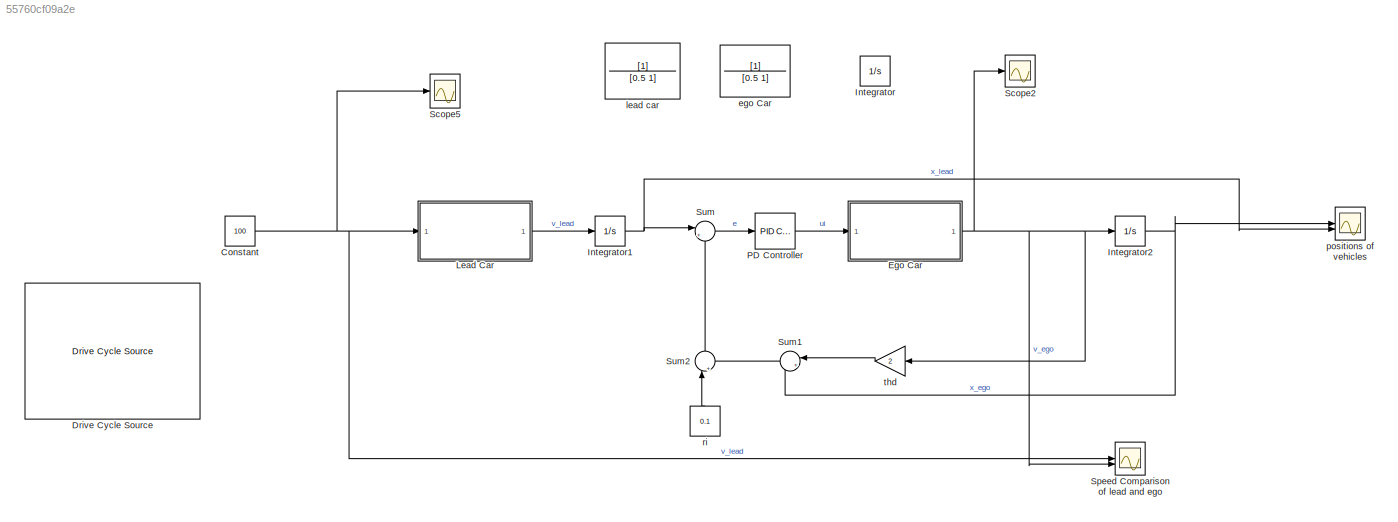
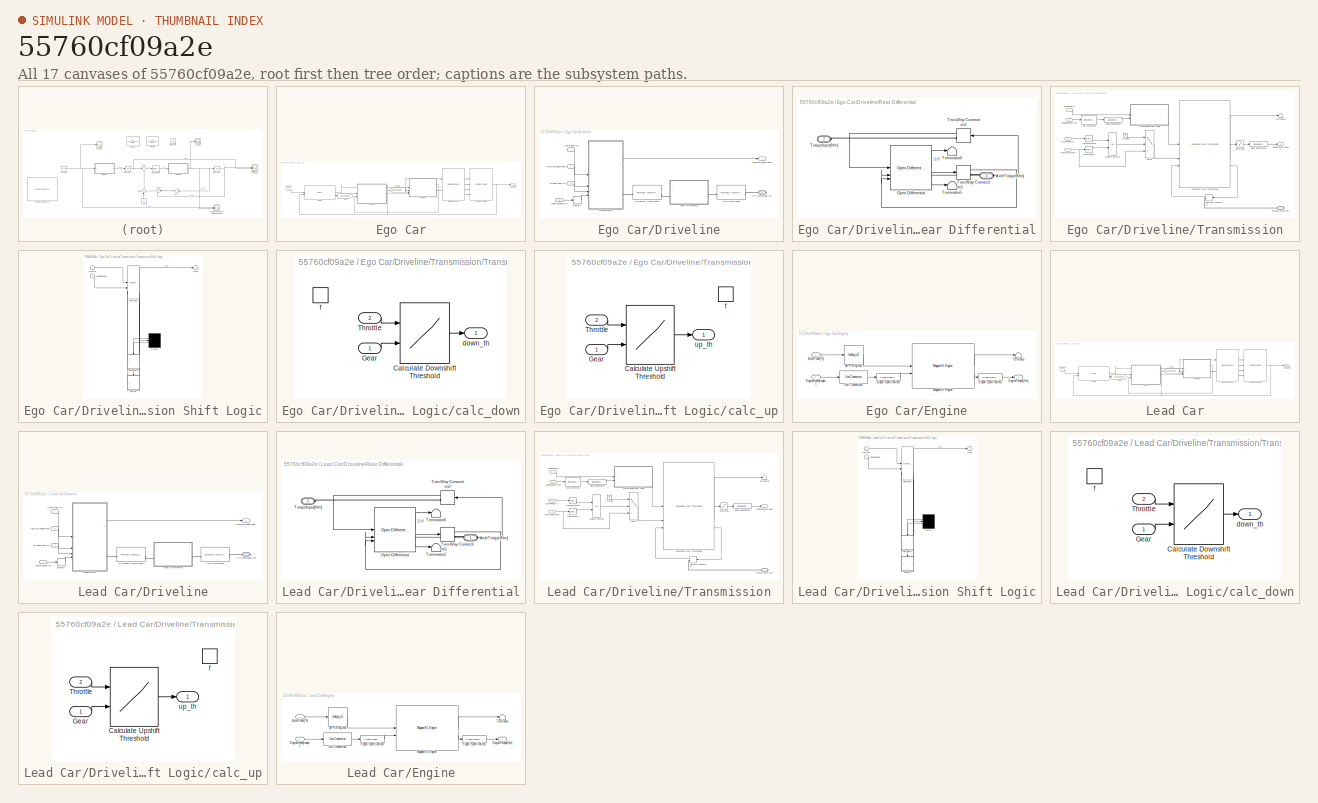
[diagram: thumbnail index - all 17 canvases of the model, root first then tree order]
MODEL slx_55760cf09a2e
KIND model
CONFIG AbsTol = 1e-6
CONFIG EnableMultiTasking = off
CONFIG FixedStep = auto
CONFIG MaxStep = auto
CONFIG MinStep = auto
CONFIG RelTol = 1e-4
CONFIG SampleTimeConstraint = Unconstrained
CONFIG SolverName = ode23tb
CONFIG StartTime = 0.0
CONFIG StopTime = 150
WORKSPACE source: mxarray member
WORKSPACE Af = 4
WORKSPACE Cd = 0.3
WORKSPACE D = 0.322411602927
WORKSPACE DownShiftSpeeds = [11.05 18.7 28.9 38.675 51.425 11.05 18.7 28.9 38.675 51.425 11.05 18.7 ... (85 elements, 5x17)]
WORKSPACE DrCycles: object (value not decoded)
WORKSPACE I = 0.25
WORKSPACE Kbr = 10000
WORKSPACE P = 15
WORKSPACE PedalPositions = [0 6.2485 12.4969 18.7454 24.9939 31.2424 37.4908 43.7393 49.9878 56.2363 62.4847 68.7332 ... (17 elements, 1x17)]
WORKSPACE TimeHWFET = 765
WORKSPACE TimeUDDS = 1372
WORKSPACE TimeUS06 = 596
WORKSPACE UpShiftSpeeds = [12.75 20.997635 31.45 42.16136 55.58864 12.75 20.997635 31.45 42.16136 55.58864 12.75 20.997635 ... (85 elements, 5x17)]
WORKSPACE axle_b = 10
WORKSPACE axle_k = 5000
WORKSPACE convAxle_wc = 500
WORKSPACE diffRatio = 3.4
WORKSPACE driveshaft_b = 10
WORKSPACE driveshaft_k = 2500
WORKSPACE driveshaft_wc = 500
WORKSPACE engineSpeedPoints_rpm = [750 1053.57142857 1357.14285714 1660.71428571 1964.28571429 2267.85714286 2571.42857143 2875 3178.57142857 3482.14285714 3785.71428571 4089.28571429 ... (15 elements, 1x15)]
WORKSPACE engineTorqueMap_Nm = [-13.6738264269 15.0034460821 26.4289521305 37.8539339756 49.2854604964 60.7146317399 72.0173711595 77.7345012802 77.7345012802 77.7345012802 77.7345012802 77.7345012802 ... (240 elements, 16x15)]
WORKSPACE engineTorquePoints_Nm = [0 15 26.4285714286 37.8571428571 49.2857142857 60.7142857143 72.1428571429 83.5714285714 95 106.428571429 117.857142857 129.285714286 ... (16 elements, 1x16)]
WORKSPACE vehicleMass = 1500
WORKSPACE wheelRadius = 0.35
BLOCK [Constant] Constant
  Value = 100
BLOCK [Reference] Drive Cycle Source  REF=autolibshared/Drive Cycle Source
  AttributesFormatString = %<cycleVar> (%<tfinal>)
  LibrarySourceBlock = vdynlib/Vehicle Scenarios/Drive Cycle and Maneuvers/Drive Cycle Source
  SourceBlock = autolibshared/Drive Cycle Source
  SourceType = Drive Cycle Source
BLOCK [SubSystem] Ego Car
BLOCK [SubSystem] Ego Car/Driveline
BLOCK [Inport] Ego Car/Driveline/AccelPedal[%]
BLOCK [Reference] Ego Car/Driveline/Axle Compliance  REF=autolibsharedcoupling/Torsional Compliance
  LibrarySourceBlock = autolibcoupling/Torsional Compliance
  SourceBlock = autolibsharedcoupling/Torsional Compliance
  SourceType = Torsional Compliance
BLOCK [Inport] Ego Car/Driveline/BrakePedal[%]
  Port = 3
BLOCK [Reference] Ego Car/Driveline/Driveshaft Compliance  REF=autolibsharedcoupling/Torsional Compliance
  LibrarySourceBlock = autolibcoupling/Torsional Compliance
  SourceBlock = autolibsharedcoupling/Torsional Compliance
  SourceType = Torsional Compliance
BLOCK [PMIOPort] Ego Car/Driveline/DrivingTorque[Nm]
  Side = Right
BLOCK [Outport] Ego Car/Driveline/EngineSpeed[radps]
  VectorParamsAs1DForOutWhenUnconnected = off
BLOCK [Inport] Ego Car/Driveline/InputTorque[Nm]
  Port = 4
BLOCK [Memory] Ego Car/Driveline/Memory
BLOCK [SubSystem] Ego Car/Driveline/Rear Differential
BLOCK [PMIOPort] Ego Car/Driveline/Rear Differential/AxleTorque[Nm]
  Side = Right
BLOCK [Reference] Ego Car/Driveline/Rear Differential/Open Differential  REF=autolibshareddiff/Open Differential
  LibrarySourceBlock = autolibdiff/Open Differential
  SourceBlock = autolibshareddiff/Open Differential
  SourceType = Open Differential
BLOCK [Terminator] Ego Car/Driveline/Rear Differential/Terminator5
BLOCK [Terminator] Ego Car/Driveline/Rear Differential/Terminator6
BLOCK [PMIOPort] Ego Car/Driveline/Rear Differential/TorqueInput[Nm]
  Port = 2
  Side = Left
BLOCK [TwoWayConnection] Ego Car/Driveline/Rear Differential/Two-Way Connection1
BLOCK [TwoWayConnection] Ego Car/Driveline/Rear Differential/Two-Way Connection2
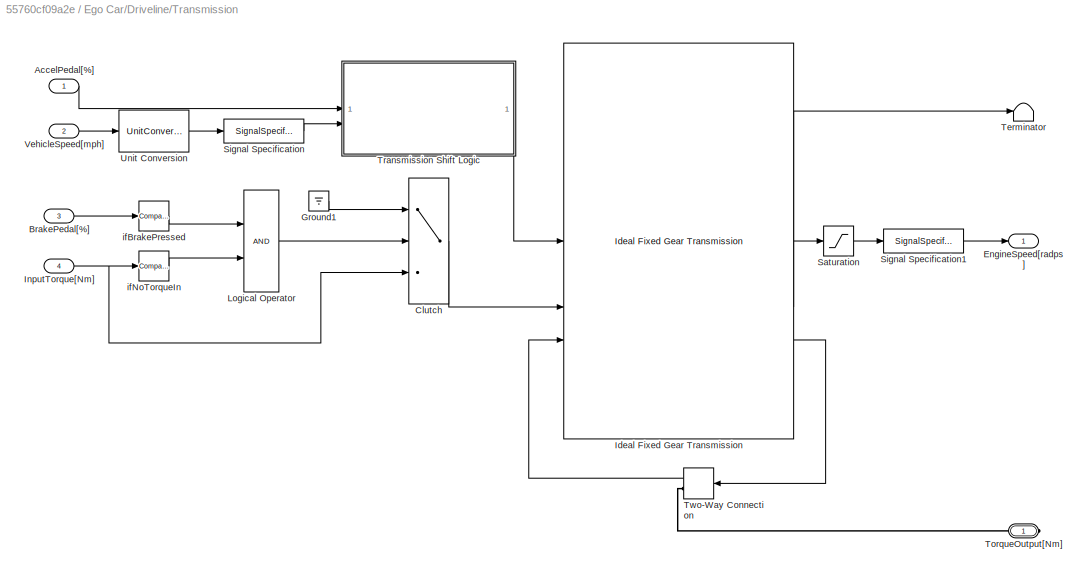
BLOCK [SubSystem] Ego Car/Driveline/Transmission
BLOCK [Inport] Ego Car/Driveline/Transmission/AccelPedal[%]
BLOCK [Inport] Ego Car/Driveline/Transmission/BrakePedal[%]
  Port = 3
BLOCK [Switch] Ego Car/Driveline/Transmission/Clutch
  Criteria = u2 ~= 0
  InputSameDT = off
  SaturateOnIntegerOverflow = off
BLOCK [Outport] Ego Car/Driveline/Transmission/EngineSpeed[radps]
  VectorParamsAs1DForOutWhenUnconnected = off
BLOCK [Ground] Ego Car/Driveline/Transmission/Ground1
BLOCK [Reference] Ego Car/Driveline/Transmission/Ideal Fixed Gear Transmission  REF=autolibsharedtransfixedgear/Ideal Fixed Gear Transmission
  SourceBlock = autolibsharedtransfixedgear/Ideal Fixed Gear Transmission
  SourceType = Ideal Fixed Gear Transmission
BLOCK [Inport] Ego Car/Driveline/Transmission/InputTorque[Nm]
  Port = 4
BLOCK [Logic] Ego Car/Driveline/Transmission/Logical Operator
  AllPortsSameDT = off
  OutDataTypeStr = boolean
BLOCK [Saturate] Ego Car/Driveline/Transmission/Saturation
  LowerLimit = 500
  UpperLimit = 6000
BLOCK [SignalSpecification] Ego Car/Driveline/Transmission/Signal Specification
  Unit = km/h
BLOCK [SignalSpecification] Ego Car/Driveline/Transmission/Signal Specification1
  Unit = rad/s
BLOCK [Terminator] Ego Car/Driveline/Transmission/Terminator
BLOCK [PMIOPort] Ego Car/Driveline/Transmission/TorqueOutput[Nm]
  Side = Right
BLOCK [SubSystem] Ego Car/Driveline/Transmission/Transmission Shift Logic
  ErrorFcn = Stateflow.Translate.translate
  PermitHierarchicalResolution = ExplicitOnly
  SFBlockType = Chart
  TreatAsAtomicUnit = on
BLOCK [Demux] Ego Car/Driveline/Transmission/Transmission Shift Logic/ Demux 
  Outputs = 2
BLOCK [S-Function] Ego Car/Driveline/Transmission/Transmission Shift Logic/ SFunction 
  EnableBusSupport = on
  FunctionName = sf_sfun
  PortCounts = [4 6]
  SFcnIsStateOwnerBlock = off
  SFunctionDeploymentMode = off
  Tag = Stateflow S-Function 2
BLOCK [Outport] Ego Car/Driveline/Transmission/Transmission Shift Logic/Gear
  VectorParamsAs1DForOutWhenUnconnected = off
BLOCK [Inport] Ego Car/Driveline/Transmission/Transmission Shift Logic/Throttle
BLOCK [Inport] Ego Car/Driveline/Transmission/Transmission Shift Logic/VehicleSpeed
  Port = 2
BLOCK [SubSystem] Ego Car/Driveline/Transmission/Transmission Shift Logic/calc_down
  PreDeleteFcn = Stateflow.SLINSF.SimulinkMan.removePreDeleteFcn
  UndoDeleteFcn = Stateflow.SLINSF.SimulinkMan.restorePreDeleteFcn
BLOCK [Lookup2D] Ego Car/Driveline/Transmission/Transmission Shift Logic/calc_down/Calculate Downshift Threshold
  ColumnIndex = [2,3,4,5,6]
  InputSameDT = off
  LookUpMeth = Interpolation-Use End Values
  RowIndex = PedalPositions
  SaturateOnIntegerOverflow = off
  Table = DownShiftSpeeds'
BLOCK [Inport] Ego Car/Driveline/Transmission/Transmission Shift Logic/calc_down/Gear
BLOCK [Inport] Ego Car/Driveline/Transmission/Transmission Shift Logic/calc_down/Throttle
  Port = 2
BLOCK [Outport] Ego Car/Driveline/Transmission/Transmission Shift Logic/calc_down/down_th
  VectorParamsAs1DForOutWhenUnconnected = off
BLOCK [TriggerPort] Ego Car/Driveline/Transmission/Transmission Shift Logic/calc_down/f
  CopyFcn = Stateflow.SLINSF.SimulinkMan.removeBlockPreDeleteFcn
  PreDeleteFcn = Stateflow.SLINSF.SimulinkMan.unsafePredeleteFcn
  TriggerType = function-call
  VariantControl = Variant
BLOCK [SubSystem] Ego Car/Driveline/Transmission/Transmission Shift Logic/calc_up
  PreDeleteFcn = Stateflow.SLINSF.SimulinkMan.removePreDeleteFcn
  UndoDeleteFcn = Stateflow.SLINSF.SimulinkMan.restorePreDeleteFcn
BLOCK [Lookup2D] Ego Car/Driveline/Transmission/Transmission Shift Logic/calc_up/Calculate Upshift Threshold
  ColumnIndex = [1,2,3,4,5]
  InputSameDT = off
  LookUpMeth = Interpolation-Use End Values
  RowIndex = PedalPositions
  SaturateOnIntegerOverflow = off
  Table = UpShiftSpeeds'
BLOCK [Inport] Ego Car/Driveline/Transmission/Transmission Shift Logic/calc_up/Gear
BLOCK [Inport] Ego Car/Driveline/Transmission/Transmission Shift Logic/calc_up/Throttle
  Port = 2
BLOCK [TriggerPort] Ego Car/Driveline/Transmission/Transmission Shift Logic/calc_up/f
  CopyFcn = Stateflow.SLINSF.SimulinkMan.removeBlockPreDeleteFcn
  PreDeleteFcn = Stateflow.SLINSF.SimulinkMan.unsafePredeleteFcn
  TriggerType = function-call
  VariantControl = Variant
BLOCK [Outport] Ego Car/Driveline/Transmission/Transmission Shift Logic/calc_up/up_th
  VectorParamsAs1DForOutWhenUnconnected = off
BLOCK [TwoWayConnection] Ego Car/Driveline/Transmission/Two-Way Connection
BLOCK [UnitConversion] Ego Car/Driveline/Transmission/Unit Conversion
BLOCK [Inport] Ego Car/Driveline/Transmission/VehicleSpeed[mph]
  Port = 2
BLOCK [Reference] Ego Car/Driveline/Transmission/ifBrakePressed  REF=simulink/Logic and Bit
Operations/Compare
To Constant
  SourceBlock = simulink/Logic and Bit\nOperations/Compare\nTo Constant
  SourceType = Compare To Constant
BLOCK [Reference] Ego Car/Driveline/Transmission/ifNoTorqueIn  REF=simulink/Logic and Bit
Operations/Compare
To Constant
  SourceBlock = simulink/Logic and Bit\nOperations/Compare\nTo Constant
  SourceType = Compare To Constant
BLOCK [Inport] Ego Car/Driveline/VehicleSpeed[mph]
  Port = 2
BLOCK [Reference] Ego Car/Driver  REF=Wheels_Driver_VehDyn_Lib/Driver
  SourceBlock = Wheels_Driver_VehDyn_Lib/Driver
  SourceType = SubSystem
BLOCK [SubSystem] Ego Car/Engine
BLOCK [Lookup_n-D] Ego Car/Engine/APP2TrqCmd
  BreakpointsForDimension1 = [ 0 100]
  ExtrapMethod = Clip
  InputPortMap = u0
  InternalRulePriority = Speed
  NumberOfTableDimensions = 1
  RndMeth = Simplest
  Table = [min(min(engineTorqueMap_Nm)) max(max(engineTorqueMap_Nm))]
BLOCK [Inport] Ego Car/Engine/AccelPedal[%]
BLOCK [Inport] Ego Car/Engine/EngineSpeed[radps]
  Port = 2
BLOCK [Outport] Ego Car/Engine/EngineTorque[Nm]
  VectorParamsAs1DForOutWhenUnconnected = off
BLOCK [Reference] Ego Car/Engine/Mapped SI Engine  REF=autolibsharedmappedengines/Mapped SI Engine
  LibrarySourceBlock = autolibenginesystems/Mapped SI Engine
  SourceBlock = autolibsharedmappedengines/Mapped SI Engine
  SourceType = Mapped SI Engine
BLOCK [SignalSpecification] Ego Car/Engine/Signal Specification1
  Unit = N*m
BLOCK [SignalSpecification] Ego Car/Engine/Signal Specification2
  Unit = rpm
BLOCK [Terminator] Ego Car/Engine/Terminator
BLOCK [UnitConversion] Ego Car/Engine/Unit Conversion1
BLOCK [From] Ego Car/From6
  GotoTag = BrakePedal
BLOCK [Goto] Ego Car/Goto
  GotoTag = BrakePedal
BLOCK [Inport] Ego Car/InSpeed
BLOCK [Reference] Ego Car/Vehicle Dynamics  REF=Wheels_Driver_VehDyn_Lib/Vehicle Dynamics
  SourceBlock = Wheels_Driver_VehDyn_Lib/Vehicle Dynamics
  SourceType = SubSystem
BLOCK [Reference] Ego Car/Wheels & Brakes  REF=Wheels_Driver_VehDyn_Lib/Wheels & Brakes
  SourceBlock = Wheels_Driver_VehDyn_Lib/Wheels & Brakes
  SourceType = SubSystem
BLOCK [Outport] Ego Car/outSpeed
BLOCK [Integrator] Integrator
  Commented = on
BLOCK [Integrator] Integrator1
BLOCK [Integrator] Integrator2
BLOCK [SubSystem] Lead Car
BLOCK [SubSystem] Lead Car/Driveline
BLOCK [Inport] Lead Car/Driveline/AccelPedal[%]
BLOCK [Reference] Lead Car/Driveline/Axle Compliance  REF=autolibsharedcoupling/Torsional Compliance
  LibrarySourceBlock = autolibcoupling/Torsional Compliance
  SourceBlock = autolibsharedcoupling/Torsional Compliance
  SourceType = Torsional Compliance
BLOCK [Inport] Lead Car/Driveline/BrakePedal[%]
  Port = 3
BLOCK [Reference] Lead Car/Driveline/Driveshaft Compliance  REF=autolibsharedcoupling/Torsional Compliance
  LibrarySourceBlock = autolibcoupling/Torsional Compliance
  SourceBlock = autolibsharedcoupling/Torsional Compliance
  SourceType = Torsional Compliance
BLOCK [PMIOPort] Lead Car/Driveline/DrivingTorque[Nm]
  Side = Right
BLOCK [Outport] Lead Car/Driveline/EngineSpeed[radps]
  VectorParamsAs1DForOutWhenUnconnected = off
BLOCK [Inport] Lead Car/Driveline/InputTorque[Nm]
  Port = 4
BLOCK [Memory] Lead Car/Driveline/Memory
BLOCK [SubSystem] Lead Car/Driveline/Rear Differential
BLOCK [PMIOPort] Lead Car/Driveline/Rear Differential/AxleTorque[Nm]
  Side = Right
BLOCK [Reference] Lead Car/Driveline/Rear Differential/Open Differential  REF=autolibshareddiff/Open Differential
  LibrarySourceBlock = autolibdiff/Open Differential
  SourceBlock = autolibshareddiff/Open Differential
  SourceType = Open Differential
BLOCK [Terminator] Lead Car/Driveline/Rear Differential/Terminator5
BLOCK [Terminator] Lead Car/Driveline/Rear Differential/Terminator6
BLOCK [PMIOPort] Lead Car/Driveline/Rear Differential/TorqueInput[Nm]
  Port = 2
  Side = Left
BLOCK [TwoWayConnection] Lead Car/Driveline/Rear Differential/Two-Way Connection1
BLOCK [TwoWayConnection] Lead Car/Driveline/Rear Differential/Two-Way Connection2
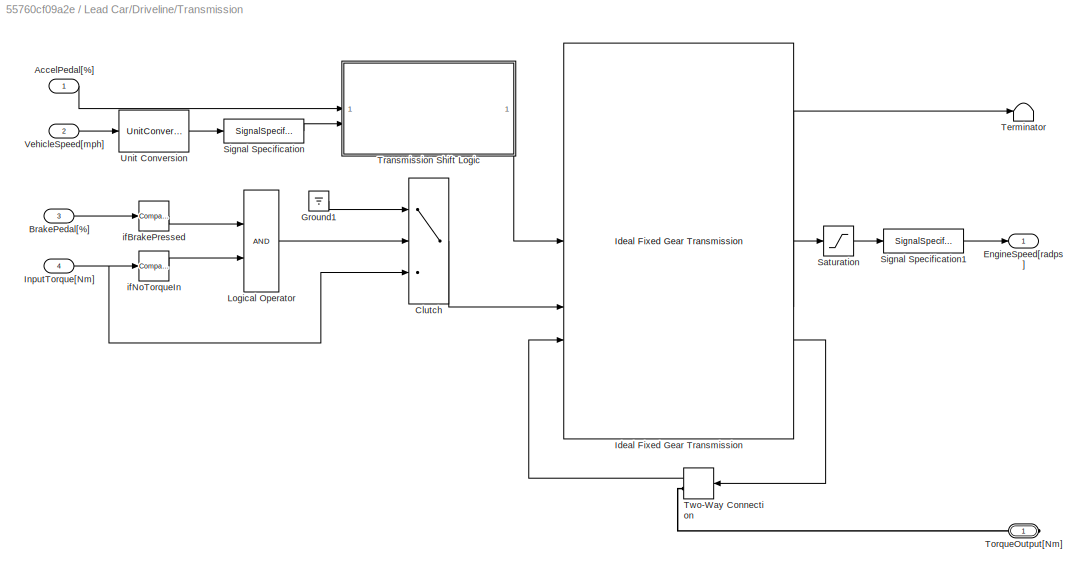
BLOCK [SubSystem] Lead Car/Driveline/Transmission
BLOCK [Inport] Lead Car/Driveline/Transmission/AccelPedal[%]
BLOCK [Inport] Lead Car/Driveline/Transmission/BrakePedal[%]
  Port = 3
BLOCK [Switch] Lead Car/Driveline/Transmission/Clutch
  Criteria = u2 ~= 0
  InputSameDT = off
  SaturateOnIntegerOverflow = off
BLOCK [Outport] Lead Car/Driveline/Transmission/EngineSpeed[radps]
  VectorParamsAs1DForOutWhenUnconnected = off
BLOCK [Ground] Lead Car/Driveline/Transmission/Ground1
BLOCK [Reference] Lead Car/Driveline/Transmission/Ideal Fixed Gear Transmission  REF=autolibsharedtransfixedgear/Ideal Fixed Gear Transmission
  SourceBlock = autolibsharedtransfixedgear/Ideal Fixed Gear Transmission
  SourceType = Ideal Fixed Gear Transmission
BLOCK [Inport] Lead Car/Driveline/Transmission/InputTorque[Nm]
  Port = 4
BLOCK [Logic] Lead Car/Driveline/Transmission/Logical Operator
  AllPortsSameDT = off
  OutDataTypeStr = boolean
BLOCK [Saturate] Lead Car/Driveline/Transmission/Saturation
  LowerLimit = 500
  UpperLimit = 6000
BLOCK [SignalSpecification] Lead Car/Driveline/Transmission/Signal Specification
  Unit = km/h
BLOCK [SignalSpecification] Lead Car/Driveline/Transmission/Signal Specification1
  Unit = rad/s
BLOCK [Terminator] Lead Car/Driveline/Transmission/Terminator
BLOCK [PMIOPort] Lead Car/Driveline/Transmission/TorqueOutput[Nm]
  Side = Right
BLOCK [SubSystem] Lead Car/Driveline/Transmission/Transmission Shift Logic
  ErrorFcn = Stateflow.Translate.translate
  PermitHierarchicalResolution = ExplicitOnly
  SFBlockType = Chart
  TreatAsAtomicUnit = on
BLOCK [Demux] Lead Car/Driveline/Transmission/Transmission Shift Logic/ Demux 
  Outputs = 2
BLOCK [S-Function] Lead Car/Driveline/Transmission/Transmission Shift Logic/ SFunction 
  EnableBusSupport = on
  FunctionName = sf_sfun
  PortCounts = [4 6]
  SFcnIsStateOwnerBlock = off
  SFunctionDeploymentMode = off
  Tag = Stateflow S-Function 1
BLOCK [Outport] Lead Car/Driveline/Transmission/Transmission Shift Logic/Gear
  VectorParamsAs1DForOutWhenUnconnected = off
BLOCK [Inport] Lead Car/Driveline/Transmission/Transmission Shift Logic/Throttle
BLOCK [Inport] Lead Car/Driveline/Transmission/Transmission Shift Logic/VehicleSpeed
  Port = 2
BLOCK [SubSystem] Lead Car/Driveline/Transmission/Transmission Shift Logic/calc_down
  PreDeleteFcn = Stateflow.SLINSF.SimulinkMan.removePreDeleteFcn
  UndoDeleteFcn = Stateflow.SLINSF.SimulinkMan.restorePreDeleteFcn
BLOCK [Lookup2D] Lead Car/Driveline/Transmission/Transmission Shift Logic/calc_down/Calculate Downshift Threshold
  ColumnIndex = [2,3,4,5,6]
  InputSameDT = off
  LookUpMeth = Interpolation-Use End Values
  RowIndex = PedalPositions
  SaturateOnIntegerOverflow = off
  Table = DownShiftSpeeds'
BLOCK [Inport] Lead Car/Driveline/Transmission/Transmission Shift Logic/calc_down/Gear
BLOCK [Inport] Lead Car/Driveline/Transmission/Transmission Shift Logic/calc_down/Throttle
  Port = 2
BLOCK [Outport] Lead Car/Driveline/Transmission/Transmission Shift Logic/calc_down/down_th
  VectorParamsAs1DForOutWhenUnconnected = off
BLOCK [TriggerPort] Lead Car/Driveline/Transmission/Transmission Shift Logic/calc_down/f
  CopyFcn = Stateflow.SLINSF.SimulinkMan.removeBlockPreDeleteFcn
  PreDeleteFcn = Stateflow.SLINSF.SimulinkMan.unsafePredeleteFcn
  TriggerType = function-call
  VariantControl = Variant
BLOCK [SubSystem] Lead Car/Driveline/Transmission/Transmission Shift Logic/calc_up
  PreDeleteFcn = Stateflow.SLINSF.SimulinkMan.removePreDeleteFcn
  UndoDeleteFcn = Stateflow.SLINSF.SimulinkMan.restorePreDeleteFcn
BLOCK [Lookup2D] Lead Car/Driveline/Transmission/Transmission Shift Logic/calc_up/Calculate Upshift Threshold
  ColumnIndex = [1,2,3,4,5]
  InputSameDT = off
  LookUpMeth = Interpolation-Use End Values
  RowIndex = PedalPositions
  SaturateOnIntegerOverflow = off
  Table = UpShiftSpeeds'
BLOCK [Inport] Lead Car/Driveline/Transmission/Transmission Shift Logic/calc_up/Gear
BLOCK [Inport] Lead Car/Driveline/Transmission/Transmission Shift Logic/calc_up/Throttle
  Port = 2
BLOCK [TriggerPort] Lead Car/Driveline/Transmission/Transmission Shift Logic/calc_up/f
  CopyFcn = Stateflow.SLINSF.SimulinkMan.removeBlockPreDeleteFcn
  PreDeleteFcn = Stateflow.SLINSF.SimulinkMan.unsafePredeleteFcn
  TriggerType = function-call
  VariantControl = Variant
BLOCK [Outport] Lead Car/Driveline/Transmission/Transmission Shift Logic/calc_up/up_th
  VectorParamsAs1DForOutWhenUnconnected = off
BLOCK [TwoWayConnection] Lead Car/Driveline/Transmission/Two-Way Connection
BLOCK [UnitConversion] Lead Car/Driveline/Transmission/Unit Conversion
BLOCK [Inport] Lead Car/Driveline/Transmission/VehicleSpeed[mph]
  Port = 2
BLOCK [Reference] Lead Car/Driveline/Transmission/ifBrakePressed  REF=simulink/Logic and Bit
Operations/Compare
To Constant
  SourceBlock = simulink/Logic and Bit\nOperations/Compare\nTo Constant
  SourceType = Compare To Constant
BLOCK [Reference] Lead Car/Driveline/Transmission/ifNoTorqueIn  REF=simulink/Logic and Bit
Operations/Compare
To Constant
  SourceBlock = simulink/Logic and Bit\nOperations/Compare\nTo Constant
  SourceType = Compare To Constant
BLOCK [Inport] Lead Car/Driveline/VehicleSpeed[mph]
  Port = 2
BLOCK [Reference] Lead Car/Driver  REF=Wheels_Driver_VehDyn_Lib/Driver
  SourceBlock = Wheels_Driver_VehDyn_Lib/Driver
  SourceType = SubSystem
BLOCK [SubSystem] Lead Car/Engine
BLOCK [Lookup_n-D] Lead Car/Engine/APP2TrqCmd
  BreakpointsForDimension1 = [ 0 100]
  ExtrapMethod = Clip
  InputPortMap = u0
  InternalRulePriority = Speed
  NumberOfTableDimensions = 1
  RndMeth = Simplest
  Table = [min(min(engineTorqueMap_Nm)) max(max(engineTorqueMap_Nm))]
BLOCK [Inport] Lead Car/Engine/AccelPedal[%]
BLOCK [Inport] Lead Car/Engine/EngineSpeed[radps]
  Port = 2
BLOCK [Outport] Lead Car/Engine/EngineTorque[Nm]
  VectorParamsAs1DForOutWhenUnconnected = off
BLOCK [Reference] Lead Car/Engine/Mapped SI Engine  REF=autolibsharedmappedengines/Mapped SI Engine
  LibrarySourceBlock = autolibenginesystems/Mapped SI Engine
  SourceBlock = autolibsharedmappedengines/Mapped SI Engine
  SourceType = Mapped SI Engine
BLOCK [SignalSpecification] Lead Car/Engine/Signal Specification1
  Unit = N*m
BLOCK [SignalSpecification] Lead Car/Engine/Signal Specification2
  Unit = rpm
BLOCK [Terminator] Lead Car/Engine/Terminator
BLOCK [UnitConversion] Lead Car/Engine/Unit Conversion1
BLOCK [From] Lead Car/From6
  GotoTag = BrakePedal
BLOCK [Goto] Lead Car/Goto
  GotoTag = BrakePedal
BLOCK [Inport] Lead Car/InSpeed
BLOCK [Reference] Lead Car/Vehicle Dynamics  REF=Wheels_Driver_VehDyn_Lib/Vehicle Dynamics
  SourceBlock = Wheels_Driver_VehDyn_Lib/Vehicle Dynamics
  SourceType = SubSystem
BLOCK [Reference] Lead Car/Wheels & Brakes  REF=Wheels_Driver_VehDyn_Lib/Wheels & Brakes
  SourceBlock = Wheels_Driver_VehDyn_Lib/Wheels & Brakes
  SourceType = SubSystem
BLOCK [Outport] Lead Car/outSpeed
BLOCK [Reference] PD Controller  REF=slpidlib/PID Controller
  LibrarySourceBlock = simulink/Continuous/PID Controller
  SourceBlock = slpidlib/PID Controller
  SourceType = PID 1dof
BLOCK [Scope] Scope2
  Floating = off
  NumInputPorts = 1
  ScopeSpecificationString = Simulink.scopes.TimeScopeBlockCfg('CurrentConfiguration', extmgr.ConfigurationSet(extmgr.Configuration('Core','General UI',true),extmgr.Configuration('Core','Source UI',true),extmgr.Configuration('Sources','WiredSimulink',true,'DataLoggingVariableName','ScopeData2'),extmgr.Configuration('Visuals','Time Domain',true,'SerializedDisplays',{struct('MinYLimReal','-12.22005','MaxYLimReal','109.98042','Y...<+1488ch>
BLOCK [Scope] Scope5
  Floating = off
  NumInputPorts = 1
  ScopeSpecificationString = Simulink.scopes.TimeScopeBlockCfg('CurrentConfiguration', extmgr.ConfigurationSet(extmgr.Configuration('Core','General UI',true),extmgr.Configuration('Core','Source UI',true),extmgr.Configuration('Sources','WiredSimulink',true),extmgr.Configuration('Visuals','Time Domain',true,'SerializedDisplays',{struct('MinYLimReal','90.00000','MaxYLimReal','110.00000','YLabelReal','','MinYLimMag','90.00000','M...<+1561ch>
BLOCK [Scope] Speed Comparison of lead and ego
  Floating = off
  NumInputPorts = 2
  ScopeSpecificationString = Simulink.scopes.TimeScopeBlockCfg('CurrentConfiguration', extmgr.ConfigurationSet(extmgr.Configuration('Core','General UI',true),extmgr.Configuration('Core','Source UI',true),extmgr.Configuration('Sources','WiredSimulink',true,'DataLoggingVariableName','ScopeData3'),extmgr.Configuration('Visuals','Time Domain',true,'SerializedDisplays',{struct('MinYLimReal','-12.5','MaxYLimReal','112.5','YLabelRea...<+1545ch>
BLOCK [Sum] Sum
  Inputs = |+-
BLOCK [Sum] Sum1
  Inputs = |++
  NameLocation = top
BLOCK [Sum] Sum2
  Inputs = |++
  NameLocation = right
BLOCK [TransferFcn] ego Car
  Commented = on
  Denominator = [0.5 1]
BLOCK [TransferFcn] lead car
  Commented = on
  Denominator = [0.5 1]
BLOCK [Scope] positions of vehicles
  Floating = off
  NumInputPorts = 2
  ScopeSpecificationString = Simulink.scopes.TimeScopeBlockCfg('CurrentConfiguration', extmgr.ConfigurationSet(extmgr.Configuration('Core','General UI',true),extmgr.Configuration('Core','Source UI',true),extmgr.Configuration('Sources','WiredSimulink',true,'DataLoggingVariableName','ScopeData4'),extmgr.Configuration('Visuals','Time Domain',true,'SerializedDisplays',{struct('MinYLimReal','-1655.96875','MaxYLimReal','14902.71047...<+1585ch>
BLOCK [Constant] ri
  NameLocation = right
  Value = 0.1
BLOCK [Gain] thd
  Gain = 2
  NameLocation = left
NET Constant:1 -> Lead Car:1, Scope5:1, Speed Comparison of lead and ego:1
LINE Ego Car/Driveline/AccelPedal[%]:1 -> Ego Car/Driveline/Transmission:1
LINE Ego Car/Driveline/BrakePedal[%]:1 -> Ego Car/Driveline/Transmission:3
LINE Ego Car/Driveline/InputTorque[Nm]:1 -> Ego Car/Driveline/Memory:1
LINE Ego Car/Driveline/Memory:1 -> Ego Car/Driveline/Transmission:4
LINE Ego Car/Driveline/Rear Differential/Open Differential:1 -> Ego Car/Driveline/Rear Differential/Terminator6:1
LINE Ego Car/Driveline/Rear Differential/Open Differential:2 -> Ego Car/Driveline/Rear Differential/Two-Way Connection2:1
LINE Ego Car/Driveline/Rear Differential/Open Differential:3 -> Ego Car/Driveline/Rear Differential/Two-Way Connection1:1
LINE Ego Car/Driveline/Rear Differential/Open Differential:4 -> Ego Car/Driveline/Rear Differential/Terminator5:1
NET Ego Car/Driveline/Rear Differential/Two-Way Connection1:1 -> Ego Car/Driveline/Rear Differential/Open Differential:2, Ego Car/Driveline/Rear Differential/Open Differential:3
LINE Ego Car/Driveline/Rear Differential/Two-Way Connection2:1 -> Ego Car/Driveline/Rear Differential/Open Differential:1
LINE Ego Car/Driveline/Transmission/AccelPedal[%]:1 -> Ego Car/Driveline/Transmission/Transmission Shift Logic:1
LINE Ego Car/Driveline/Transmission/BrakePedal[%]:1 -> Ego Car/Driveline/Transmission/ifBrakePressed:1
LINE Ego Car/Driveline/Transmission/Clutch:1 -> Ego Car/Driveline/Transmission/Ideal Fixed Gear Transmission:2
LINE Ego Car/Driveline/Transmission/Ground1:1 -> Ego Car/Driveline/Transmission/Clutch:1
LINE Ego Car/Driveline/Transmission/Ideal Fixed Gear Transmission:1 -> Ego Car/Driveline/Transmission/Terminator:1
LINE Ego Car/Driveline/Transmission/Ideal Fixed Gear Transmission:2 -> Ego Car/Driveline/Transmission/Saturation:1
LINE Ego Car/Driveline/Transmission/Ideal Fixed Gear Transmission:3 -> Ego Car/Driveline/Transmission/Two-Way Connection:1
NET Ego Car/Driveline/Transmission/InputTorque[Nm]:1 -> Ego Car/Driveline/Transmission/Clutch:3, Ego Car/Driveline/Transmission/ifNoTorqueIn:1
LINE Ego Car/Driveline/Transmission/Logical Operator:1 -> Ego Car/Driveline/Transmission/Clutch:2
LINE Ego Car/Driveline/Transmission/Saturation:1 -> Ego Car/Driveline/Transmission/Signal Specification1:1
LINE Ego Car/Driveline/Transmission/Signal Specification1:1 -> Ego Car/Driveline/Transmission/EngineSpeed[radps]:1
LINE Ego Car/Driveline/Transmission/Signal Specification:1 -> Ego Car/Driveline/Transmission/Transmission Shift Logic:2
LINE Ego Car/Driveline/Transmission/Transmission Shift Logic:1 -> Ego Car/Driveline/Transmission/Ideal Fixed Gear Transmission:1
LINE Ego Car/Driveline/Transmission/Two-Way Connection:1 -> Ego Car/Driveline/Transmission/Ideal Fixed Gear Transmission:3
LINE Ego Car/Driveline/Transmission/Unit Conversion:1 -> Ego Car/Driveline/Transmission/Signal Specification:1
LINE Ego Car/Driveline/Transmission/VehicleSpeed[mph]:1 -> Ego Car/Driveline/Transmission/Unit Conversion:1
LINE Ego Car/Driveline/Transmission/ifBrakePressed:1 -> Ego Car/Driveline/Transmission/Logical Operator:1
LINE Ego Car/Driveline/Transmission/ifNoTorqueIn:1 -> Ego Car/Driveline/Transmission/Logical Operator:2
LINE Ego Car/Driveline/Transmission:1 -> Ego Car/Driveline/EngineSpeed[radps]:1
LINE Ego Car/Driveline/VehicleSpeed[mph]:1 -> Ego Car/Driveline/Transmission:2
LINE Ego Car/Driveline:1 -> Ego Car/Engine:2
NET Ego Car/Driver:1 -> Ego Car/Driveline:1, Ego Car/Engine:1
LINE Ego Car/Driver:2 -> Ego Car/Goto:1
LINE Ego Car/Engine/APP2TrqCmd:1 -> Ego Car/Engine/Mapped SI Engine:1
LINE Ego Car/Engine/AccelPedal[%]:1 -> Ego Car/Engine/APP2TrqCmd:1
LINE Ego Car/Engine/EngineSpeed[radps]:1 -> Ego Car/Engine/Unit Conversion1:1
LINE Ego Car/Engine/Mapped SI Engine:1 -> Ego Car/Engine/Terminator:1
LINE Ego Car/Engine/Mapped SI Engine:2 -> Ego Car/Engine/Signal Specification1:1
LINE Ego Car/Engine/Signal Specification1:1 -> Ego Car/Engine/EngineTorque[Nm]:1
LINE Ego Car/Engine/Signal Specification2:1 -> Ego Car/Engine/Mapped SI Engine:2
LINE Ego Car/Engine/Unit Conversion1:1 -> Ego Car/Engine/Signal Specification2:1
LINE Ego Car/Engine:1 -> Ego Car/Driveline:4
NET Ego Car/From6:1 -> Ego Car/Driveline:3, Ego Car/Wheels & Brakes:1
LINE Ego Car/InSpeed:1 -> Ego Car/Driver:1
NET Ego Car/Vehicle Dynamics:1 -> Ego Car/Driveline:2, Ego Car/Driver:2, Ego Car/outSpeed:1
NET Ego Car:1 -> Integrator2:1, Scope2:1, Speed Comparison of lead and ego:2, thd:1
NET Integrator1:1 -> Sum:1, positions of vehicles:2
NET Integrator2:1 -> Sum1:2, positions of vehicles:1
LINE Lead Car/Driveline/AccelPedal[%]:1 -> Lead Car/Driveline/Transmission:1
LINE Lead Car/Driveline/BrakePedal[%]:1 -> Lead Car/Driveline/Transmission:3
LINE Lead Car/Driveline/InputTorque[Nm]:1 -> Lead Car/Driveline/Memory:1
LINE Lead Car/Driveline/Memory:1 -> Lead Car/Driveline/Transmission:4
LINE Lead Car/Driveline/Rear Differential/Open Differential:1 -> Lead Car/Driveline/Rear Differential/Terminator6:1
LINE Lead Car/Driveline/Rear Differential/Open Differential:2 -> Lead Car/Driveline/Rear Differential/Two-Way Connection2:1
LINE Lead Car/Driveline/Rear Differential/Open Differential:3 -> Lead Car/Driveline/Rear Differential/Two-Way Connection1:1
LINE Lead Car/Driveline/Rear Differential/Open Differential:4 -> Lead Car/Driveline/Rear Differential/Terminator5:1
NET Lead Car/Driveline/Rear Differential/Two-Way Connection1:1 -> Lead Car/Driveline/Rear Differential/Open Differential:2, Lead Car/Driveline/Rear Differential/Open Differential:3
LINE Lead Car/Driveline/Rear Differential/Two-Way Connection2:1 -> Lead Car/Driveline/Rear Differential/Open Differential:1
LINE Lead Car/Driveline/Transmission/AccelPedal[%]:1 -> Lead Car/Driveline/Transmission/Transmission Shift Logic:1
LINE Lead Car/Driveline/Transmission/BrakePedal[%]:1 -> Lead Car/Driveline/Transmission/ifBrakePressed:1
LINE Lead Car/Driveline/Transmission/Clutch:1 -> Lead Car/Driveline/Transmission/Ideal Fixed Gear Transmission:2
LINE Lead Car/Driveline/Transmission/Ground1:1 -> Lead Car/Driveline/Transmission/Clutch:1
LINE Lead Car/Driveline/Transmission/Ideal Fixed Gear Transmission:1 -> Lead Car/Driveline/Transmission/Terminator:1
LINE Lead Car/Driveline/Transmission/Ideal Fixed Gear Transmission:2 -> Lead Car/Driveline/Transmission/Saturation:1
LINE Lead Car/Driveline/Transmission/Ideal Fixed Gear Transmission:3 -> Lead Car/Driveline/Transmission/Two-Way Connection:1
NET Lead Car/Driveline/Transmission/InputTorque[Nm]:1 -> Lead Car/Driveline/Transmission/Clutch:3, Lead Car/Driveline/Transmission/ifNoTorqueIn:1
LINE Lead Car/Driveline/Transmission/Logical Operator:1 -> Lead Car/Driveline/Transmission/Clutch:2
LINE Lead Car/Driveline/Transmission/Saturation:1 -> Lead Car/Driveline/Transmission/Signal Specification1:1
LINE Lead Car/Driveline/Transmission/Signal Specification1:1 -> Lead Car/Driveline/Transmission/EngineSpeed[radps]:1
LINE Lead Car/Driveline/Transmission/Signal Specification:1 -> Lead Car/Driveline/Transmission/Transmission Shift Logic:2
LINE Lead Car/Driveline/Transmission/Transmission Shift Logic:1 -> Lead Car/Driveline/Transmission/Ideal Fixed Gear Transmission:1
LINE Lead Car/Driveline/Transmission/Two-Way Connection:1 -> Lead Car/Driveline/Transmission/Ideal Fixed Gear Transmission:3
LINE Lead Car/Driveline/Transmission/Unit Conversion:1 -> Lead Car/Driveline/Transmission/Signal Specification:1
LINE Lead Car/Driveline/Transmission/VehicleSpeed[mph]:1 -> Lead Car/Driveline/Transmission/Unit Conversion:1
LINE Lead Car/Driveline/Transmission/ifBrakePressed:1 -> Lead Car/Driveline/Transmission/Logical Operator:1
LINE Lead Car/Driveline/Transmission/ifNoTorqueIn:1 -> Lead Car/Driveline/Transmission/Logical Operator:2
LINE Lead Car/Driveline/Transmission:1 -> Lead Car/Driveline/EngineSpeed[radps]:1
LINE Lead Car/Driveline/VehicleSpeed[mph]:1 -> Lead Car/Driveline/Transmission:2
LINE Lead Car/Driveline:1 -> Lead Car/Engine:2
NET Lead Car/Driver:1 -> Lead Car/Driveline:1, Lead Car/Engine:1
LINE Lead Car/Driver:2 -> Lead Car/Goto:1
LINE Lead Car/Engine/APP2TrqCmd:1 -> Lead Car/Engine/Mapped SI Engine:1
LINE Lead Car/Engine/AccelPedal[%]:1 -> Lead Car/Engine/APP2TrqCmd:1
LINE Lead Car/Engine/EngineSpeed[radps]:1 -> Lead Car/Engine/Unit Conversion1:1
LINE Lead Car/Engine/Mapped SI Engine:1 -> Lead Car/Engine/Terminator:1
LINE Lead Car/Engine/Mapped SI Engine:2 -> Lead Car/Engine/Signal Specification1:1
LINE Lead Car/Engine/Signal Specification1:1 -> Lead Car/Engine/EngineTorque[Nm]:1
LINE Lead Car/Engine/Signal Specification2:1 -> Lead Car/Engine/Mapped SI Engine:2
LINE Lead Car/Engine/Unit Conversion1:1 -> Lead Car/Engine/Signal Specification2:1
LINE Lead Car/Engine:1 -> Lead Car/Driveline:4
NET Lead Car/From6:1 -> Lead Car/Driveline:3, Lead Car/Wheels & Brakes:1
LINE Lead Car/InSpeed:1 -> Lead Car/Driver:1
NET Lead Car/Vehicle Dynamics:1 -> Lead Car/Driveline:2, Lead Car/Driver:2, Lead Car/outSpeed:1
LINE Lead Car:1 -> Integrator1:1
LINE PD Controller:1 -> Ego Car:1
LINE Sum1:1 -> Sum2:2
LINE Sum2:1 -> Sum:2
LINE Sum:1 -> PD Controller:1
LINE ri:1 -> Sum2:1
LINE thd:1 -> Sum1:1
PLINE Ego Car/Driveline/Axle Compliance:LConn1 -- Ego Car/Driveline/Rear Differential:RConn1
PLINE Ego Car/Driveline/Axle Compliance:RConn1 -- Ego Car/Driveline/DrivingTorque[Nm]:RConn1
PLINE Ego Car/Driveline/Driveshaft Compliance:LConn1 -- Ego Car/Driveline/Transmission:RConn1
PLINE Ego Car/Driveline/Driveshaft Compliance:RConn1 -- Ego Car/Driveline/Rear Differential:LConn1
PLINE Ego Car/Driveline/Rear Differential/AxleTorque[Nm]:RConn1 -- Ego Car/Driveline/Rear Differential/Two-Way Connection1:RConn1
PLINE Ego Car/Driveline/Rear Differential/TorqueInput[Nm]:RConn1 -- Ego Car/Driveline/Rear Differential/Two-Way Connection2:RConn1
PLINE Ego Car/Driveline/Transmission/TorqueOutput[Nm]:RConn1 -- Ego Car/Driveline/Transmission/Two-Way Connection:RConn1
PLINE Ego Car/Driveline:RConn1 -- Ego Car/Wheels & Brakes:LConn1
PLINE Ego Car/Vehicle Dynamics:LConn1 -- Ego Car/Wheels & Brakes:RConn1
PLINE Ego Car/Vehicle Dynamics:LConn2 -- Ego Car/Wheels & Brakes:RConn2
PLINE Ego Car/Vehicle Dynamics:LConn3 -- Ego Car/Wheels & Brakes:RConn3
PLINE Ego Car/Vehicle Dynamics:LConn4 -- Ego Car/Wheels & Brakes:RConn4
PLINE Lead Car/Driveline/Axle Compliance:LConn1 -- Lead Car/Driveline/Rear Differential:RConn1
PLINE Lead Car/Driveline/Axle Compliance:RConn1 -- Lead Car/Driveline/DrivingTorque[Nm]:RConn1
PLINE Lead Car/Driveline/Driveshaft Compliance:LConn1 -- Lead Car/Driveline/Transmission:RConn1
PLINE Lead Car/Driveline/Driveshaft Compliance:RConn1 -- Lead Car/Driveline/Rear Differential:LConn1
PLINE Lead Car/Driveline/Rear Differential/AxleTorque[Nm]:RConn1 -- Lead Car/Driveline/Rear Differential/Two-Way Connection1:RConn1
PLINE Lead Car/Driveline/Rear Differential/TorqueInput[Nm]:RConn1 -- Lead Car/Driveline/Rear Differential/Two-Way Connection2:RConn1
PLINE Lead Car/Driveline/Transmission/TorqueOutput[Nm]:RConn1 -- Lead Car/Driveline/Transmission/Two-Way Connection:RConn1
PLINE Lead Car/Driveline:RConn1 -- Lead Car/Wheels & Brakes:LConn1
PLINE Lead Car/Vehicle Dynamics:LConn1 -- Lead Car/Wheels & Brakes:RConn1
PLINE Lead Car/Vehicle Dynamics:LConn2 -- Lead Car/Wheels & Brakes:RConn2
PLINE Lead Car/Vehicle Dynamics:LConn3 -- Lead Car/Wheels & Brakes:RConn3
PLINE Lead Car/Vehicle Dynamics:LConn4 -- Lead Car/Wheels & Brakes:RConn4
note: NET lines group one-source signal fan-out (src -> all destinations, sorted); 1:1 wires keep LINE
CHART Ego Car/Driveline/Transmission/Transmission Shift Logic states=13 transitions=18
  STATE_LABEL 'gear_state'
  STATE_LABEL 'first\nentry:\nGear = 1;'
  STATE_LABEL 'second\nentry:\nGear = 2;'
  STATE_LABEL 'third\nentry:\nGear = 3;'
  STATE_LABEL 'fourth\nentry:\nGear = 4;'
  STATE_LABEL 'fifth\nentry:\nGear = 5;'
  STATE_LABEL 'sixth\nentry:\nGear = 6;'
  STATE_LABEL 'UP'
  STATE_LABEL 'UP'
  STATE_LABEL 'UP'
  STATE_LABEL 'UP'
  STATE_LABEL 'UP'
  STATE_LABEL 'DOWN'
  STATE_LABEL 'DOWN'
  STATE_LABEL 'DOWN'
  STATE_LABEL 'DOWN'
  STATE_LABEL 'DOWN'
  STATE_LABEL 'first\nentry:\nGear = 1;'
  STATE_LABEL 'second\nentry:\nGear = 2;'
  STATE_LABEL 'third\nentry:\nGear = 3;'
  STATE_LABEL 'fourth\nentry:\nGear = 4;'
  STATE_LABEL 'fifth\nentry:\nGear = 5;'
  STATE_LABEL 'sixth\nentry:\nGear = 6;'
  STATE_LABEL 'selection_state\ndu:[up_th]=calc_up(Gear,Throttle);\ndu:[down_th]=calc_down(Gear,Throttle);'
  STATE_LABEL 'steady_state'
  STATE_LABEL 'upshifting'
  STATE_LABEL 'downshifting'
  STATE_LABEL '[VehicleSpeed > up_th]'
  STATE_LABEL '[VehicleSpeed < down_th && Gear > 1]'
  STATE_LABEL '[VehicleSpeed > down_th]'
  STATE_LABEL 'after(1,tick)\n[VehicleSpeed <= down_th]\n{gear_state.DOWN;}'
  STATE_LABEL 'after(1,tick)\n[VehicleSpeed >= up_th]\n{gear_state.UP;}'
  STATE_LABEL '[VehicleSpeed < up_th]'
  STATE_LABEL 'steady_state'
  STATE_LABEL 'upshifting'
  STATE_LABEL 'downshifting'
  STATE_LABEL 'up_th = calc_up(Gear,Throttle)'
  STATE_LABEL 'down_th = calc_down(Gear,Throttle)'
CHART Lead Car/Driveline/Transmission/Transmission Shift Logic states=13 transitions=18
  STATE_LABEL 'gear_state'
  STATE_LABEL 'first\nentry:\nGear = 1;'
  STATE_LABEL 'second\nentry:\nGear = 2;'
  STATE_LABEL 'third\nentry:\nGear = 3;'
  STATE_LABEL 'fourth\nentry:\nGear = 4;'
  STATE_LABEL 'fifth\nentry:\nGear = 5;'
  STATE_LABEL 'sixth\nentry:\nGear = 6;'
  STATE_LABEL 'UP'
  STATE_LABEL 'UP'
  STATE_LABEL 'UP'
  STATE_LABEL 'UP'
  STATE_LABEL 'UP'
  STATE_LABEL 'DOWN'
  STATE_LABEL 'DOWN'
  STATE_LABEL 'DOWN'
  STATE_LABEL 'DOWN'
  STATE_LABEL 'DOWN'
  STATE_LABEL 'first\nentry:\nGear = 1;'
  STATE_LABEL 'second\nentry:\nGear = 2;'
  STATE_LABEL 'third\nentry:\nGear = 3;'
  STATE_LABEL 'fourth\nentry:\nGear = 4;'
  STATE_LABEL 'fifth\nentry:\nGear = 5;'
  STATE_LABEL 'sixth\nentry:\nGear = 6;'
  STATE_LABEL 'selection_state\ndu:[up_th]=calc_up(Gear,Throttle);\ndu:[down_th]=calc_down(Gear,Throttle);'
  STATE_LABEL 'steady_state'
  STATE_LABEL 'upshifting'
  STATE_LABEL 'downshifting'
  STATE_LABEL '[VehicleSpeed > up_th]'
  STATE_LABEL '[VehicleSpeed < down_th && Gear > 1]'
  STATE_LABEL '[VehicleSpeed > down_th]'
  STATE_LABEL 'after(1,tick)\n[VehicleSpeed <= down_th]\n{gear_state.DOWN;}'
  STATE_LABEL 'after(1,tick)\n[VehicleSpeed >= up_th]\n{gear_state.UP;}'
  STATE_LABEL '[VehicleSpeed < up_th]'
  STATE_LABEL 'steady_state'
  STATE_LABEL 'upshifting'
  STATE_LABEL 'downshifting'
  STATE_LABEL 'up_th = calc_up(Gear,Throttle)'
  STATE_LABEL 'down_th = calc_down(Gear,Throttle)'
CHART  states=0 transitions=0
CHART  states=0 transitions=0
